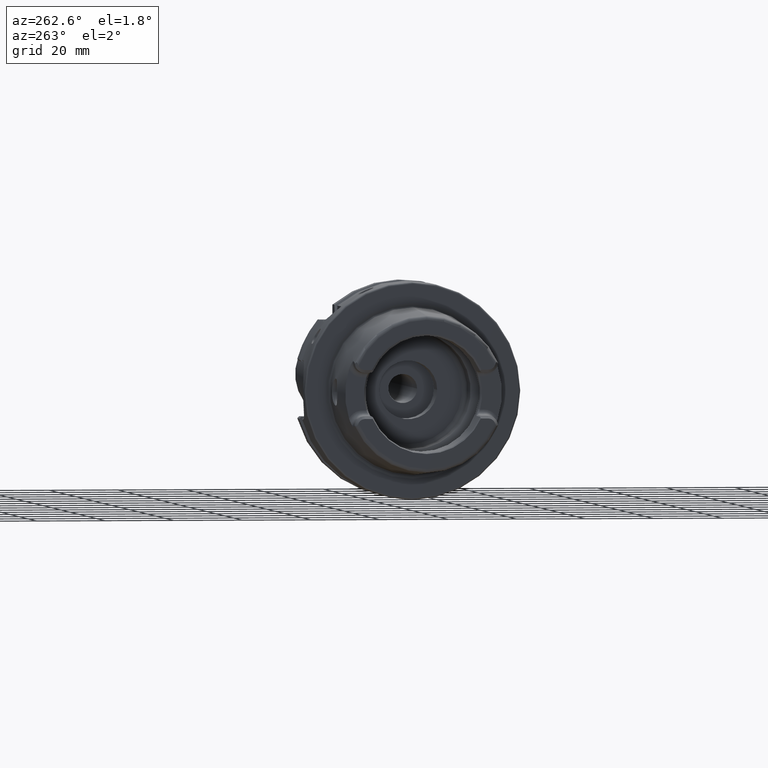
[diagram: clean part render]
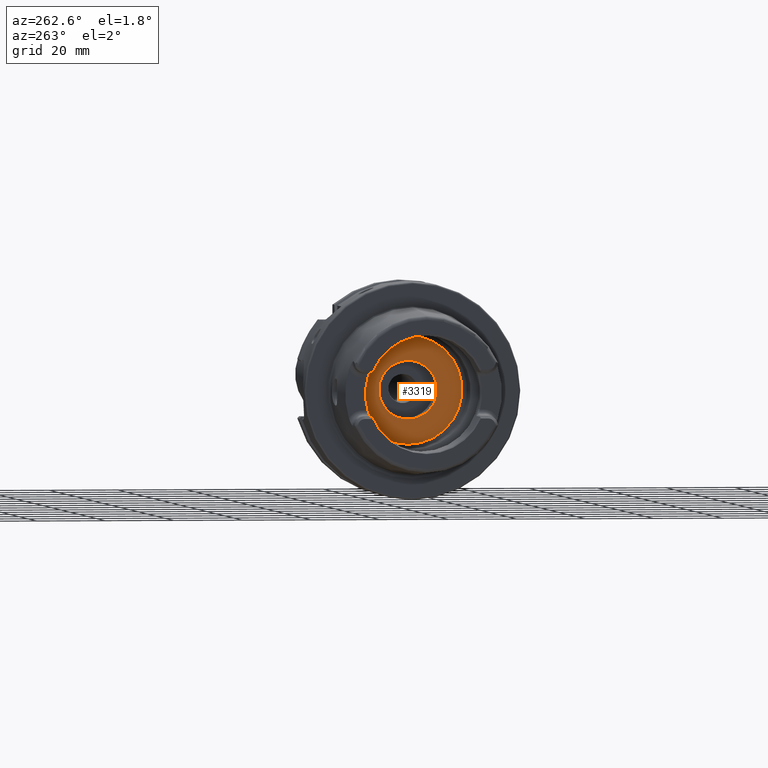
[diagram: same view with one face highlighted and labeled with its STEP entity id]
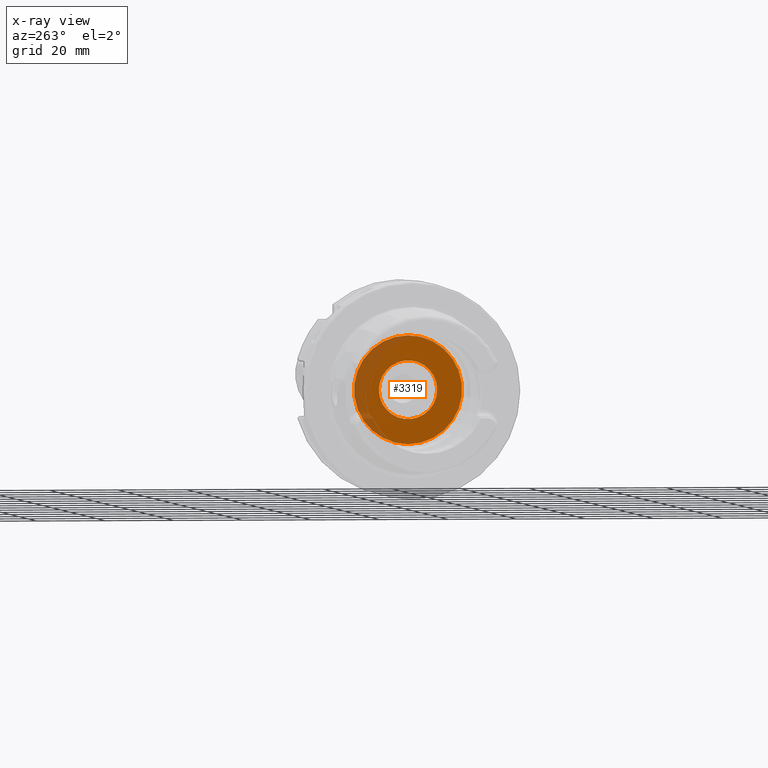
[diagram: x-ray of the same camera — body ghosted, the highlighted face saturated]
A machine part, auxiliary view. The second image highlights one B-rep face of the part: STEP entity #3319.
The next image is the same camera in x-ray: the body ghosted, the highlighted face saturated — about 20% of this face is hidden behind the body in this view.
In plain terms, the highlighted planar face has unit normal (1, 0, 0).
Its self-contained STEP definition (entity closure, byte-faithful):
#338=CARTESIAN_POINT('',(1.E1,0.E0,0.E0));
#339=DIRECTION('',(-1.E0,0.E0,0.E0));
#340=DIRECTION('',(0.E0,0.E0,-1.E0));
#341=AXIS2_PLACEMENT_3D('',#338,#339,#340);
#348=CARTESIAN_POINT('',(1.E1,0.E0,0.E0));
#349=DIRECTION('',(1.E0,0.E0,0.E0));
#350=DIRECTION('',(0.E0,0.E0,-1.E0));
#351=AXIS2_PLACEMENT_3D('',#348,#349,#350);
#353=CARTESIAN_POINT('',(1.E1,0.E0,0.E0));
#354=DIRECTION('',(-1.E0,0.E0,0.E0));
#355=DIRECTION('',(0.E0,1.E0,0.E0));
#356=AXIS2_PLACEMENT_3D('',#353,#354,#355);
#358=CARTESIAN_POINT('',(1.E1,0.E0,0.E0));
#359=DIRECTION('',(-1.E0,0.E0,0.E0));
#360=DIRECTION('',(0.E0,-1.E0,0.E0));
#361=AXIS2_PLACEMENT_3D('',#358,#359,#360);
#2571=CARTESIAN_POINT('',(1.E1,0.E0,-1.575E1));
#2572=CARTESIAN_POINT('',(1.E1,0.E0,1.575E1));
#2573=VERTEX_POINT('',#2571);
#2574=VERTEX_POINT('',#2572);
#2575=CARTESIAN_POINT('',(1.E1,8.5E0,0.E0));
#2576=CARTESIAN_POINT('',(1.E1,-8.5E0,0.E0));
#2577=VERTEX_POINT('',#2575);
#2578=VERTEX_POINT('',#2576);
#3304=CARTESIAN_POINT('',(1.E1,0.E0,0.E0));
#3305=DIRECTION('',(1.E0,0.E0,0.E0));
#3306=DIRECTION('',(0.E0,0.E0,1.E0));
#3307=AXIS2_PLACEMENT_3D('',#3304,#3305,#3306);
#3308=PLANE('',#3307);
#3309=ORIENTED_EDGE('',*,*,#3284,.F.);
#3310=ORIENTED_EDGE('',*,*,#3298,.T.);
#3311=EDGE_LOOP('',(#3309,#3310));
#3312=FACE_OUTER_BOUND('',#3311,.F.);
#3314=ORIENTED_EDGE('',*,*,#3313,.T.);
#3316=ORIENTED_EDGE('',*,*,#3315,.T.);
#3317=EDGE_LOOP('',(#3314,#3316));
#3318=FACE_BOUND('',#3317,.F.);
#3319=ADVANCED_FACE('',(#3312,#3318),#3308,.F.);
#342=CIRCLE('',#341,1.575E1);
#352=CIRCLE('',#351,1.575E1);
#357=CIRCLE('',#356,8.5E0);
#362=CIRCLE('',#361,8.5E0);
#3284=EDGE_CURVE('',#2573,#2574,#342,.T.);
#3298=EDGE_CURVE('',#2573,#2574,#352,.T.);
#3313=EDGE_CURVE('',#2577,#2578,#357,.T.);
#3315=EDGE_CURVE('',#2578,#2577,#362,.T.);